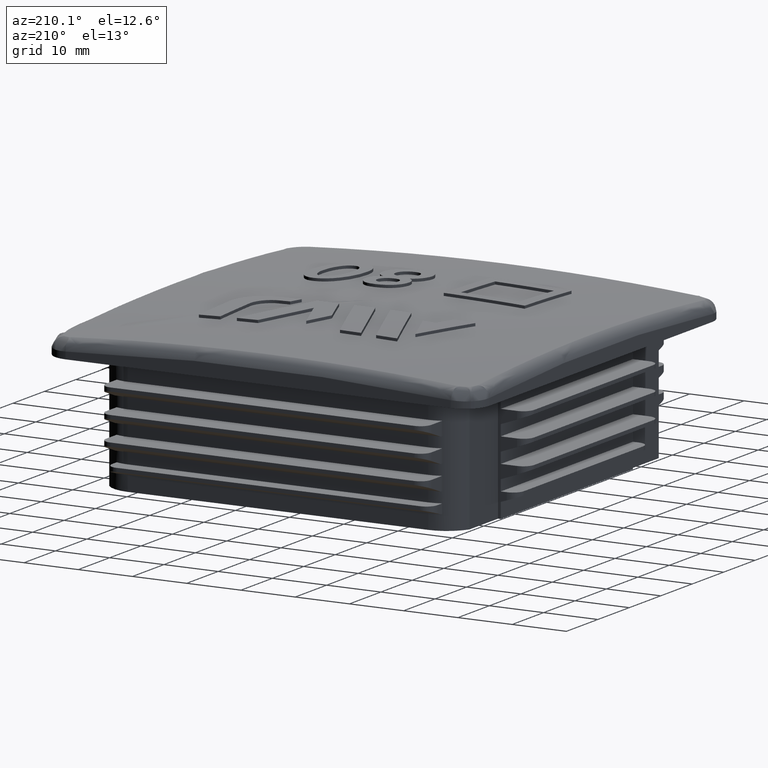
[diagram: clean part render]
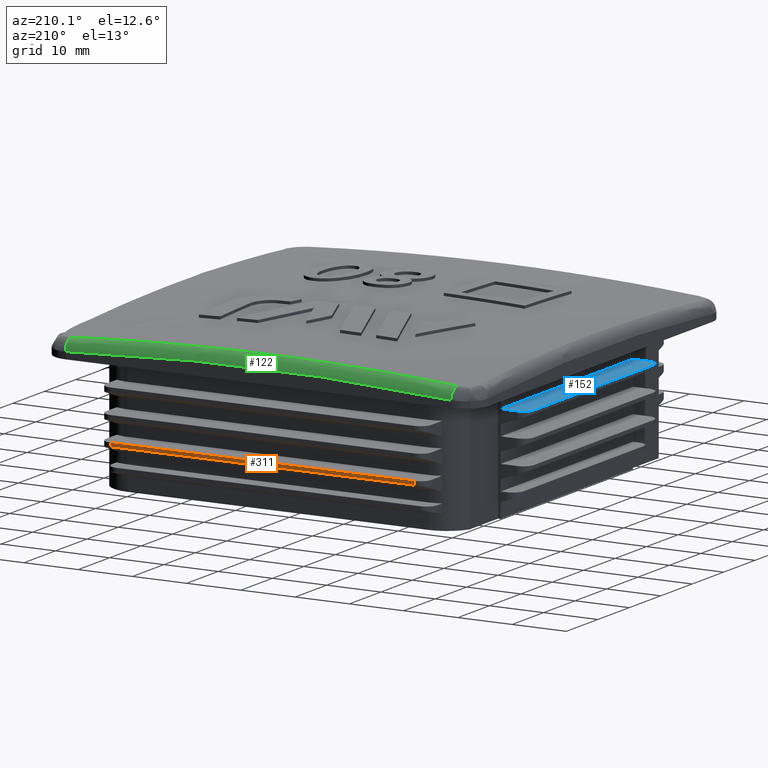
[diagram: same view with three faces highlighted in distinct colors, each labeled with its STEP entity id]
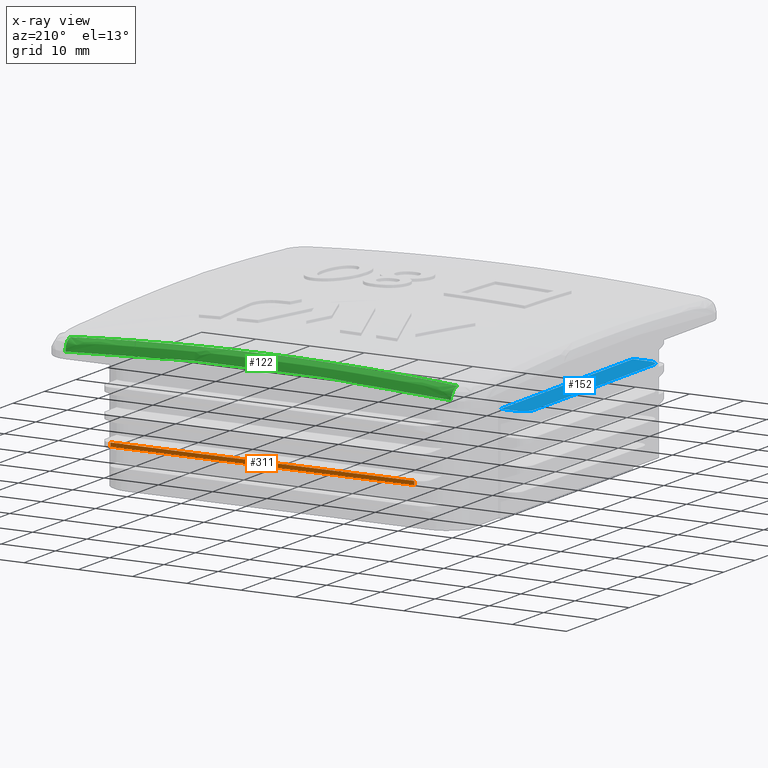
[diagram: x-ray of the same camera — body ghosted, the three highlighted faces saturated]
A machine part, auxiliary view with three faces highlighted in distinct colors.
The next image is the same camera in x-ray (body ghosted, the three faces saturated) — at least one of them is partly hidden behind the body in this view.
Their STEP definitions:

[orange] entity #311 — the highlighted planar face has unit normal (0, 1, -0).
#311 = ADVANCED_FACE( '', ( #827 ), #828, .T. );
#827 = FACE_OUTER_BOUND( '', #3408, .T. );
#828 = PLANE( '', #3409 );
#3408 = EDGE_LOOP( '', ( #5407, #5408, #5409, #5410 ) );
#3409 = AXIS2_PLACEMENT_3D( '', #5411, #5412, #5413 );
#5407 = ORIENTED_EDGE( '', *, *, #6242, .T. );
#5408 = ORIENTED_EDGE( '', *, *, #6243, .T. );
#5409 = ORIENTED_EDGE( '', *, *, #6237, .F. );
#5410 = ORIENTED_EDGE( '', *, *, #6244, .T. );
#5411 = CARTESIAN_POINT( '', ( -30.0000000000000, 38.7000000000000, 8.31985117133104 ) );
#5412 = DIRECTION( '', ( 6.12303176911188E-017, 1.00000000000000, -1.11022302462516E-016 ) );
#5413 = DIRECTION( '', ( -1.11251042310975E-031, -1.11022302462516E-016, -1.00000000000000 ) );
#6237 = EDGE_CURVE( '', #7346, #7347, #7348, .T. );
#6242 = EDGE_CURVE( '', #7355, #7356, #7357, .T. );
#6243 = EDGE_CURVE( '', #7356, #7347, #7358, .F. );
#6244 = EDGE_CURVE( '', #7346, #7355, #7359, .T. );
#7346 = VERTEX_POINT( '', #11202 );
#7347 = VERTEX_POINT( '', #11203 );
#7348 = LINE( '', #11204, #11205 );
#7355 = VERTEX_POINT( '', #11214 );
#7356 = VERTEX_POINT( '', #11215 );
#7357 = LINE( '', #11216, #11217 );
#7358 = LINE( '', #11218, #11219 );
#7359 = LINE( '', #11220, #11221 );
#11202 = CARTESIAN_POINT( '', ( -28.0000000000000, 38.7000000000001, 8.31985117133104 ) );
#11203 = CARTESIAN_POINT( '', ( 28.0000000000000, 38.7000000000000, 8.31985117133104 ) );
#11204 = CARTESIAN_POINT( '', ( -30.0000000000000, 38.7000000000001, 8.31985117133104 ) );
#11205 = VECTOR( '', #12075, 1000.00000000000 );
#11214 = CARTESIAN_POINT( '', ( -28.0000000000000, 38.7000000000000, 9.00000000000001 ) );
#11215 = CARTESIAN_POINT( '', ( 28.0000000000000, 38.7000000000000, 9.00000000000001 ) );
#11216 = CARTESIAN_POINT( '', ( -30.0000000000000, 38.7000000000000, 9.00000000000001 ) );
#11217 = VECTOR( '', #12084, 1000.00000000000 );
#11218 = CARTESIAN_POINT( '', ( 28.0000000000000, 38.7000000000000, 8.31985117133104 ) );
#11219 = VECTOR( '', #12085, 1000.00000000000 );
#11220 = CARTESIAN_POINT( '', ( -28.0000000000000, 38.7000000000000, 9.00000000000001 ) );
#11221 = VECTOR( '', #12086, 1000.00000000000 );
#12075 = DIRECTION( '', ( 1.00000000000000, -6.12303176911188E-017, -1.04770588974666E-031 ) );
#12084 = DIRECTION( '', ( 1.00000000000000, -6.12303176911188E-017, -1.04770588974666E-031 ) );
#12085 = DIRECTION( '', ( -4.64878268214240E-033, 1.11022302462516E-016, 1.00000000000000 ) );
#12086 = DIRECTION( '', ( -4.64878268214240E-033, 1.11022302462516E-016, 1.00000000000000 ) );

[blue] entity #152 — the highlighted planar face has unit normal (-0, -0, -1).
#152 = ADVANCED_FACE( '', ( #494 ), #495, .F. );
#494 = FACE_OUTER_BOUND( '', #2815, .T. );
#495 = PLANE( '', #2816 );
#2815 = EDGE_LOOP( '', ( #4079, #4080, #4081, #4082, #4083, #4084 ) );
#2816 = AXIS2_PLACEMENT_3D( '', #4085, #4086, #4087 );
#4079 = ORIENTED_EDGE( '', *, *, #5891, .F. );
#4080 = ORIENTED_EDGE( '', *, *, #5892, .F. );
#4081 = ORIENTED_EDGE( '', *, *, #5893, .T. );
#4082 = ORIENTED_EDGE( '', *, *, #5894, .T. );
#4083 = ORIENTED_EDGE( '', *, *, #5895, .T. );
#4084 = ORIENTED_EDGE( '', *, *, #5633, .T. );
#4085 = CARTESIAN_POINT( '', ( -38.7000000000000, 21.0000000000000, 18.0000000000000 ) );
#4086 = DIRECTION( '', ( -1.98242552531890E-032, -6.12303176911188E-017, -1.00000000000000 ) );
#4087 = DIRECTION( '', ( -1.00000000000000, 1.22460635382238E-016, 1.23259516440783E-032 ) );
#5633 = EDGE_CURVE( '', #6362, #6360, #6363, .T. );
#5891 = EDGE_CURVE( '', #6796, #6360, #6798, .T. );
#5892 = EDGE_CURVE( '', #6799, #6796, #6800, .T. );
#5893 = EDGE_CURVE( '', #6799, #6801, #6802, .F. );
#5894 = EDGE_CURVE( '', #6801, #6803, #6804, .T. );
#5895 = EDGE_CURVE( '', #6803, #6362, #6805, .F. );
#6360 = VERTEX_POINT( '', #7525 );
#6362 = VERTEX_POINT( '', #7528 );
#6363 = LINE( '', #7529, #7530 );
#6796 = VERTEX_POINT( '', #9590 );
#6798 = LINE( '', #9593, #9594 );
#6799 = VERTEX_POINT( '', #9595 );
#6800 = LINE( '', #9596, #9597 );
#6801 = VERTEX_POINT( '', #9598 );
#6802 = CIRCLE( '', #9599, 2.00000000000000 );
#6803 = VERTEX_POINT( '', #9600 );
#6804 = LINE( '', #9601, #9602 );
#6805 = CIRCLE( '', #9603, 2.00000000000000 );
#7525 = CARTESIAN_POINT( '', ( -33.7000000000000, -21.0000000000000, 18.0000000000000 ) );
#7528 = CARTESIAN_POINT( '', ( -36.7000000000000, -21.0000000000000, 18.0000000000000 ) );
#7529 = CARTESIAN_POINT( '', ( -38.7000000000000, -21.0000000000000, 18.0000000000000 ) );
#7530 = VECTOR( '', #11351, 1000.00000000000 );
#9590 = CARTESIAN_POINT( '', ( -33.7000000000000, 21.0000000000000, 18.0000000000000 ) );
#9593 = CARTESIAN_POINT( '', ( -33.7000000000000, 27.7000000000000, 18.0000000000000 ) );
#9594 = VECTOR( '', #11692, 1000.00000000000 );
#9595 = CARTESIAN_POINT( '', ( -36.7000000000000, 21.0000000000000, 18.0000000000000 ) );
#9596 = CARTESIAN_POINT( '', ( -38.7000000000000, 21.0000000000000, 18.0000000000000 ) );
#9597 = VECTOR( '', #11693, 1000.00000000000 );
#9598 = CARTESIAN_POINT( '', ( -38.7000000000000, 19.0000000000000, 18.0000000000000 ) );
#9599 = AXIS2_PLACEMENT_3D( '', #11694, #11695, #11696 );
#9600 = CARTESIAN_POINT( '', ( -38.7000000000000, -19.0000000000000, 18.0000000000000 ) );
#9601 = CARTESIAN_POINT( '', ( -38.7000000000000, 21.0000000000000, 18.0000000000000 ) );
#9602 = VECTOR( '', #11697, 1000.00000000000 );
#9603 = AXIS2_PLACEMENT_3D( '', #11698, #11699, #11700 );
#11351 = DIRECTION( '', ( 1.00000000000000, -1.22460635382238E-016, 5.55111512312579E-017 ) );
#11692 = DIRECTION( '', ( 0.000000000000000, -1.00000000000000, 6.12303176911188E-017 ) );
#11693 = DIRECTION( '', ( 1.00000000000000, -1.22460635382238E-016, 5.55111512312579E-017 ) );
#11694 = CARTESIAN_POINT( '', ( -36.7000000000000, 19.0000000000000, 18.0000000000000 ) );
#11695 = DIRECTION( '', ( 6.84227765783602E-048, -6.12303176911188E-017, -1.00000000000000 ) );
#11696 = DIRECTION( '', ( -1.22460635382238E-016, -1.00000000000000, 6.12303176911188E-017 ) );
#11697 = DIRECTION( '', ( -1.22460635382238E-016, -1.00000000000000, 6.12303176911188E-017 ) );
#11698 = CARTESIAN_POINT( '', ( -36.7000000000000, -19.0000000000000, 18.0000000000000 ) );
#11699 = DIRECTION( '', ( 6.84227765783602E-048, -6.12303176911188E-017, -1.00000000000000 ) );
#11700 = DIRECTION( '', ( -1.22460635382238E-016, -1.00000000000000, 6.12303176911188E-017 ) );

[green] entity #122 — the highlighted face is a freeform B-spline surface patch.
#122 = ADVANCED_FACE( '', ( #432 ), #433, .T. );
#432 = FACE_OUTER_BOUND( '', #2449, .T. );
#433 = ( B_SPLINE_SURFACE( 3, 2, ( ( #2451, #2452, #2453 ), ( #2454, #2455, #2456 ), ( #2457, #2458, #2459 ), ( #2460, #2461, #2462 ), ( #2463, #2464, #2465 ), ( #2466, #2467, #2468 ), ( #2469, #2470, #2471 ), ( #2472, #2473, #2474 ), ( #2475, #2476, #2477 ), ( #2478, #2479, #2480 ), ( #2481, #2482, #2483 ), ( #2484, #2485, #2486 ), ( #2487, #2488, #2489 ), ( #2490, #2491, #2492 ), ( #2493, #2494, #2495 ), ( #2496, #2497, #2498 ) ), .UNSPECIFIED., .F., .F., .F. )B_SPLINE_SURFACE_WITH_KNOTS( ( 4, 2, 2, 2, 2, 2, 2, 4 ), ( 3, 3 ), ( 0.000000000000000, 0.0177531865383754, 0.0355063730767507, 0.0443829663459384, 0.0488212629805322, 0.0510404112978291, 0.0532595596151261, 0.0710127461535014 ), ( 0.000000000000000, 1.00000000000000 ), .UNSPECIFIED. )RATIONAL_B_SPLINE_SURFACE( ( ( 1.00000000000000, 0.733583874251396, 1.00000000000000 ), ( 1.00000000000000, 0.733583493134682, 1.00000000000000 ), ( 1.00000000000000, 0.733583048586665, 1.00000000000000 ), ( 1.00000000000000, 0.733582310969698, 1.00000000000000 ), ( 1.00000000000000, 0.733582038347459, 1.00000000000000 ), ( 1.00000000000000, 0.733582038347459, 1.00000000000000 ), ( 1.00000000000000, 0.733582102284236, 1.00000000000000 ), ( 1.00000000000000, 0.733582274011763, 1.00000000000000 ), ( 1.00000000000000, 0.733582343414518, 1.00000000000000 ), ( 1.00000000000000, 0.733582460732524, 1.00000000000000 ), ( 1.00000000000000, 0.733582502032715, 1.00000000000000 ), ( 1.00000000000000, 0.733582588150374, 1.00000000000000 ), ( 1.00000000000000, 0.733582632967634, 1.00000000000000 ), ( 1.00000000000000, 0.733583048261396, 1.00000000000000 ), ( 1.00000000000000, 0.733583493175485, 1.00000000000000 ), ( 1.00000000000000, 0.733583874251396, 1.00000000000000 ) ) )BOUNDED_SURFACE(  )REPRESENTATION_ITEM( '' )GEOMETRIC_REPRESENTATION_ITEM(  )SURFACE(  ) );
#2449 = EDGE_LOOP( '', ( #3820, #3821, #3822, #3823 ) );
#2451 = CARTESIAN_POINT( '', ( 35.5000000000000, 40.0000000000000, 23.2784936224966 ) );
#2452 = CARTESIAN_POINT( '', ( 35.6324391062303, 40.0000000000000, 25.1265728057927 ) );
#2453 = CARTESIAN_POINT( '', ( 35.6425429652569, 38.1525812022467, 25.2675638776100 ) );
#2454 = CARTESIAN_POINT( '', ( 29.5892358129959, 40.0000000000000, 23.7020773814461 ) );
#2455 = CARTESIAN_POINT( '', ( 29.6996219112785, 40.0000000000205, 25.5517390714821 ) );
#2456 = CARTESIAN_POINT( '', ( 29.7080431793312, 38.1525789334149, 25.6928487768278 ) );
#2457 = CARTESIAN_POINT( '', ( 23.6764586290700, 40.0000000000000, 24.0194960859291 ) );
#2458 = CARTESIAN_POINT( '', ( 23.7647850001432, 40.0000000000205, 25.8703444068784 ) );
#2459 = CARTESIAN_POINT( '', ( 23.7715232342100, 38.1525763567049, 26.0115422545499 ) );
#2460 = CARTESIAN_POINT( '', ( 11.8468976020274, 40.0000000000000, 24.4428128111372 ) );
#2461 = CARTESIAN_POINT( '', ( 11.8910918147558, 39.9999999999794, 26.2952444223755 ) );
#2462 = CARTESIAN_POINT( '', ( 11.8944631912062, 38.1525720278593, 26.4365590469282 ) );
#2463 = CARTESIAN_POINT( '', ( 5.93011310882912, 40.0000000000000, 24.5487116816014 ) );
#2464 = CARTESIAN_POINT( '', ( 5.95223500607945, 39.9999999999794, 26.4015398212630 ) );
#2465 = CARTESIAN_POINT( '', ( 5.95392257974470, 38.1525704297905, 26.5428832140350 ) );
#2466 = CARTESIAN_POINT( '', ( -2.94806972633444, 40.0000000000000, 24.5489141089421 ) );
#2467 = CARTESIAN_POINT( '', ( -2.95906730671376, 40.0000000000102, 26.4017430063270 ) );
#2468 = CARTESIAN_POINT( '', ( -2.95990625948619, 38.1525704270208, 26.5430864543753 ) );
#2469 = CARTESIAN_POINT( '', ( -5.90796514412611, 40.0000000000000, 24.5225340876381 ) );
#2470 = CARTESIAN_POINT( '', ( -5.93000442502163, 39.9999999999897, 26.3752642264695 ) );
#2471 = CARTESIAN_POINT( '', ( -5.93168569670829, 38.1525708031578, 26.5166004891413 ) );
#2472 = CARTESIAN_POINT( '', ( -10.3485611198461, 40.0000000000000, 24.4432326477275 ) );
#2473 = CARTESIAN_POINT( '', ( -10.3871660608863, 40.0000000000051, 26.2956660129656 ) );
#2474 = CARTESIAN_POINT( '', ( -10.3901110728409, 38.1525718109816, 26.4369805696371 ) );
#2475 = CARTESIAN_POINT( '', ( -11.8288852611355, 40.0000000000000, 24.4101765183121 ) );
#2476 = CARTESIAN_POINT( '', ( -11.8730126059227, 40.0000000000000, 26.2624861870711 ) );
#2477 = CARTESIAN_POINT( '', ( -11.8763789080964, 38.1525722182799, 26.4037916846753 ) );
#2478 = CARTESIAN_POINT( '', ( -14.0495599099271, 40.0000000000000, 24.3506476186744 ) );
#2479 = CARTESIAN_POINT( '', ( -14.1019716572055, 40.0000000000000, 26.2027345683612 ) );
#2480 = CARTESIAN_POINT( '', ( -14.1059699632040, 38.1525729067766, 26.3440237131190 ) );
#2481 = CARTESIAN_POINT( '', ( -14.7898161994908, 40.0000000000000, 24.3291471755563 ) );
#2482 = CARTESIAN_POINT( '', ( -14.8449895469426, 39.9999999999999, 26.1811536897748 ) );
#2483 = CARTESIAN_POINT( '', ( -14.8491985322780, 38.1525731491548, 26.3224369228412 ) );
#2484 = CARTESIAN_POINT( '', ( -16.2703916331613, 40.0000000000000, 24.2828291576845 ) );
#2485 = CARTESIAN_POINT( '', ( -16.3310884483025, 39.9999999999999, 26.1346624056994 ) );
#2486 = CARTESIAN_POINT( '', ( -16.3357188154071, 38.1525736545490, 26.2759328888522 ) );
#2487 = CARTESIAN_POINT( '', ( -17.0107436807865, 40.0000000000000, 24.2580102889545 ) );
#2488 = CARTESIAN_POINT( '', ( -17.0742024861926, 40.0000000000000, 26.1097507014060 ) );
#2489 = CARTESIAN_POINT( '', ( -17.0790435650926, 38.1525739175685, 26.2510143459603 ) );
#2490 = CARTESIAN_POINT( '', ( -23.6728964153310, 40.0000000000000, 24.0197512163577 ) );
#2491 = CARTESIAN_POINT( '', ( -23.7612094956776, 40.0000000000000, 25.8706004909493 ) );
#2492 = CARTESIAN_POINT( '', ( -23.7679467156741, 38.1525763547723, 26.0117984094454 ) );
#2493 = CARTESIAN_POINT( '', ( -29.5892360808139, 40.0000000000000, 23.7020773616000 ) );
#2494 = CARTESIAN_POINT( '', ( -29.6996221801339, 40.0000000000000, 25.5517390514955 ) );
#2495 = CARTESIAN_POINT( '', ( -29.7080434483024, 38.1525789334671, 25.6928487575485 ) );
#2496 = CARTESIAN_POINT( '', ( -35.5000000000000, 40.0000000000000, 23.2784936224967 ) );
#2497 = CARTESIAN_POINT( '', ( -35.6324391062303, 40.0000000000000, 25.1265728057928 ) );
#2498 = CARTESIAN_POINT( '', ( -35.6425429652569, 38.1525812022467, 25.2675638776101 ) );
#3820 = ORIENTED_EDGE( '', *, *, #5786, .T. );
#3821 = ORIENTED_EDGE( '', *, *, #5779, .F. );
#3822 = ORIENTED_EDGE( '', *, *, #5771, .F. );
#3823 = ORIENTED_EDGE( '', *, *, #5787, .F. );
#5771 = EDGE_CURVE( '', #6599, #6596, #6601, .T. );
#5779 = EDGE_CURVE( '', #6596, #6614, #6615, .T. );
#5786 = EDGE_CURVE( '', #6625, #6614, #6626, .T. );
#5787 = EDGE_CURVE( '', #6625, #6599, #6627, .T. );
#6596 = VERTEX_POINT( '', #8863 );
#6599 = VERTEX_POINT( '', #8890 );
#6601 = CIRCLE( '', #8912, 2.00000000000000 );
#6614 = VERTEX_POINT( '', #8965 );
#6615 = B_SPLINE_CURVE_WITH_KNOTS( '', 3, ( #8966, #8967, #8968, #8969, #8970, #8971, #8972, #8973, #8974, #8975, #8976, #8977, #8978, #8979, #8980 ), .UNSPECIFIED., .F., .F., ( 4, 1, 2, 2, 1, 1, 1, 1, 1, 1, 4 ), ( 0.000000000000000, 0.00888728799719374, 0.0177745759943875, 0.0199963979936859, 0.0222182199929844, 0.0266618639915812, 0.0355491519887749, 0.0444364399859687, 0.0533237279831624, 0.0622110159803561, 0.0710983039775499 ), .UNSPECIFIED. );
#6625 = VERTEX_POINT( '', #8994 );
#6626 = CIRCLE( '', #8995, 2.00000000000000 );
#6627 = B_SPLINE_CURVE_WITH_KNOTS( '', 3, ( #8996, #8997, #8998, #8999, #9000, #9001, #9002, #9003, #9004, #9005, #9006, #9007, #9008, #9009, #9010, #9011, #9012, #9013, #9014, #9015, #9016 ), .UNSPECIFIED., .F., .F., ( 4, 1, 1, 1, 1, 2, 1, 2, 2, 2, 2, 2, 4 ), ( 0.000000000000000, 0.00891204744112023, 0.0178240948822405, 0.0267361423233607, 0.0356481897644809, 0.0445602372056012, 0.0490162609261613, 0.0512442727864413, 0.0534722846467214, 0.0623843320878416, 0.0646123439481217, 0.0668403558084017, 0.0712963795289619 ), .UNSPECIFIED. );
#8863 = CARTESIAN_POINT( '', ( -35.5000000000000, 40.0000000000000, 23.2784936224966 ) );
#8890 = CARTESIAN_POINT( '', ( -35.6425429652569, 38.1525812022467, 25.2675638776100 ) );
#8912 = AXIS2_PLACEMENT_3D( '', #11500, #11501, #11502 );
#8965 = CARTESIAN_POINT( '', ( 35.5000000000000, 40.0000000000000, 23.2784936224966 ) );
#8966 = CARTESIAN_POINT( '', ( -35.5000000000000, 40.0000000000000, 23.2784936224967 ) );
#8967 = CARTESIAN_POINT( '', ( -32.5446179210880, 40.0000000000000, 23.4902855005925 ) );
#8968 = CARTESIAN_POINT( '', ( -26.6310654655273, 40.0000000000000, 23.8609016986984 ) );
#8969 = CARTESIAN_POINT( '', ( -20.7119396444146, 40.0000000000000, 24.1256441374348 ) );
#8970 = CARTESIAN_POINT( '', ( -17.0107436807884, 39.9999999999999, 24.2580102889737 ) );
#8971 = CARTESIAN_POINT( '', ( -16.2703916331602, 39.9999999999999, 24.2828291576941 ) );
#8972 = CARTESIAN_POINT( '', ( -14.7898161994919, 39.9999999999999, 24.3291471755467 ) );
#8973 = CARTESIAN_POINT( '', ( -12.5690473317735, 40.0000000000000, 24.3936484536231 ) );
#8974 = CARTESIAN_POINT( '', ( -7.38791285300782, 40.0000000000000, 24.5093440768945 ) );
#8975 = CARTESIAN_POINT( '', ( 0.0118256916140564, 40.0000000000000, 24.5752941393508 ) );
#8976 = CARTESIAN_POINT( '', ( 8.88850510810412, 40.0000000000000, 24.4957491934039 ) );
#8977 = CARTESIAN_POINT( '', ( 17.7621792342553, 40.0000000000000, 24.2576008541520 ) );
#8978 = CARTESIAN_POINT( '', ( 26.6328466483068, 40.0000000000000, 23.8607740885566 ) );
#8979 = CARTESIAN_POINT( '', ( 32.5446175738294, 40.0000000000000, 23.4902855254781 ) );
#8980 = CARTESIAN_POINT( '', ( 35.5000000000000, 40.0000000000000, 23.2784936224966 ) );
#8994 = CARTESIAN_POINT( '', ( 35.6425429652569, 38.1525812022467, 25.2675638776100 ) );
#8995 = AXIS2_PLACEMENT_3D( '', #11522, #11523, #11524 );
#8996 = CARTESIAN_POINT( '', ( 35.6425429652569, 38.1525812022467, 25.2675638776100 ) );
#8997 = CARTESIAN_POINT( '', ( 32.6753563933838, 38.1525800678731, 25.4802017894293 ) );
#8998 = CARTESIAN_POINT( '', ( 26.7399731791790, 38.1525776778237, 25.8521714590949 ) );
#8999 = CARTESIAN_POINT( '', ( 17.8338753667034, 38.1525740681211, 26.2505885459038 ) );
#9000 = CARTESIAN_POINT( '', ( 8.92475889403682, 38.1525711849328, 26.4896967810216 ) );
#9001 = CARTESIAN_POINT( '', ( 0.0126251848079258, 38.1525700508803, 26.5695712960080 ) );
#9002 = CARTESIAN_POINT( '', ( -5.93080981407860, 38.1525708030281, 26.5166105360878 ) );
#9003 = CARTESIAN_POINT( '', ( -10.3891419046088, 38.1525718107284, 26.4370006734311 ) );
#9004 = CARTESIAN_POINT( '', ( -12.6184969220454, 38.1525724216233, 26.3872227945947 ) );
#9005 = CARTESIAN_POINT( '', ( -14.8481357186087, 38.1525731488050, 26.3224685606972 ) );
#9006 = CARTESIAN_POINT( '', ( -16.3346246879594, 38.1525736541655, 26.2759687260195 ) );
#9007 = CARTESIAN_POINT( '', ( -17.0779308960105, 38.1525739171684, 26.2510524670495 ) );
#9008 = CARTESIAN_POINT( '', ( -20.7939594902875, 38.1525752711332, 26.1181641021271 ) );
#9009 = CARTESIAN_POINT( '', ( -23.7655505570712, 38.1525764739116, 25.9852632045671 ) );
#9010 = CARTESIAN_POINT( '', ( -27.4784996834337, 38.1525779726634, 25.7859004843492 ) );
#9011 = CARTESIAN_POINT( '', ( -28.2210125176076, 38.1525782725106, 25.7443659864289 ) );
#9012 = CARTESIAN_POINT( '', ( -29.7058841821714, 38.1525788698770, 25.6579726168489 ) );
#9013 = CARTESIAN_POINT( '', ( -30.4482314886814, 38.1525791673929, 25.6131143732627 ) );
#9014 = CARTESIAN_POINT( '', ( -32.6749228450167, 38.1525800533610, 25.4735601418385 ) );
#9015 = CARTESIAN_POINT( '', ( -34.1589498630594, 38.1525806350599, 25.3738828203524 ) );
#9016 = CARTESIAN_POINT( '', ( -35.6425429652569, 38.1525812022467, 25.2675638776101 ) );
#11500 = CARTESIAN_POINT( '', ( -35.5000000000000, 38.0000000000000, 23.2784936224966 ) );
#11501 = DIRECTION( '', ( -0.997442047424238, -2.54608930881391E-015, -0.0714798015536140 ) );
#11502 = DIRECTION( '', ( -0.0714798015536140, 0.000000000000000, 0.997442047424238 ) );
#11522 = CARTESIAN_POINT( '', ( 35.5000000000000, 38.0000000000000, 23.2784936224966 ) );
#11523 = DIRECTION( '', ( -0.997442047424238, -2.02271231507812E-015, 0.0714798015536144 ) );
#11524 = DIRECTION( '', ( 0.0714798015536144, 0.000000000000000, 0.997442047424238 ) );